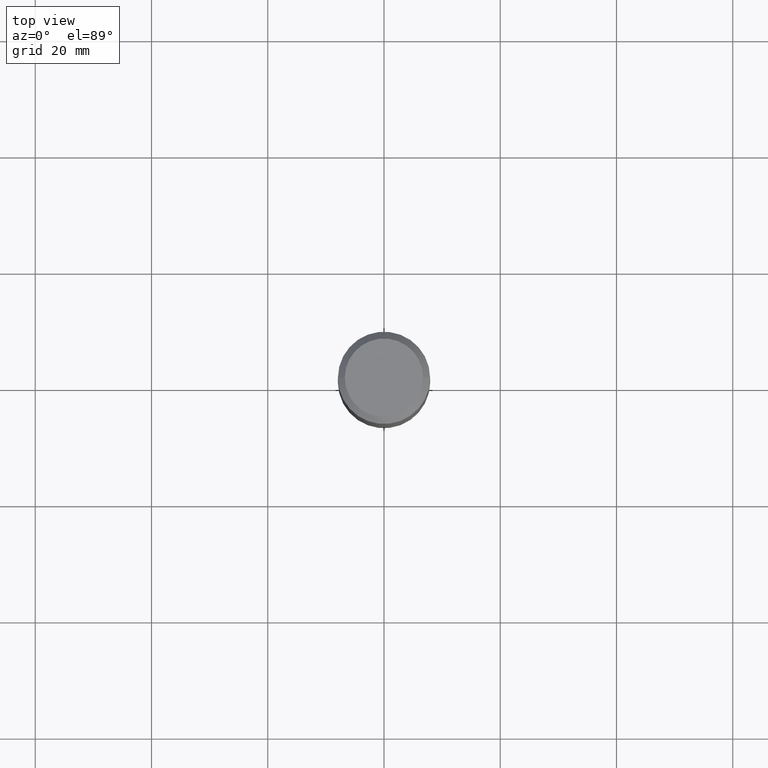
[diagram: clean part render]
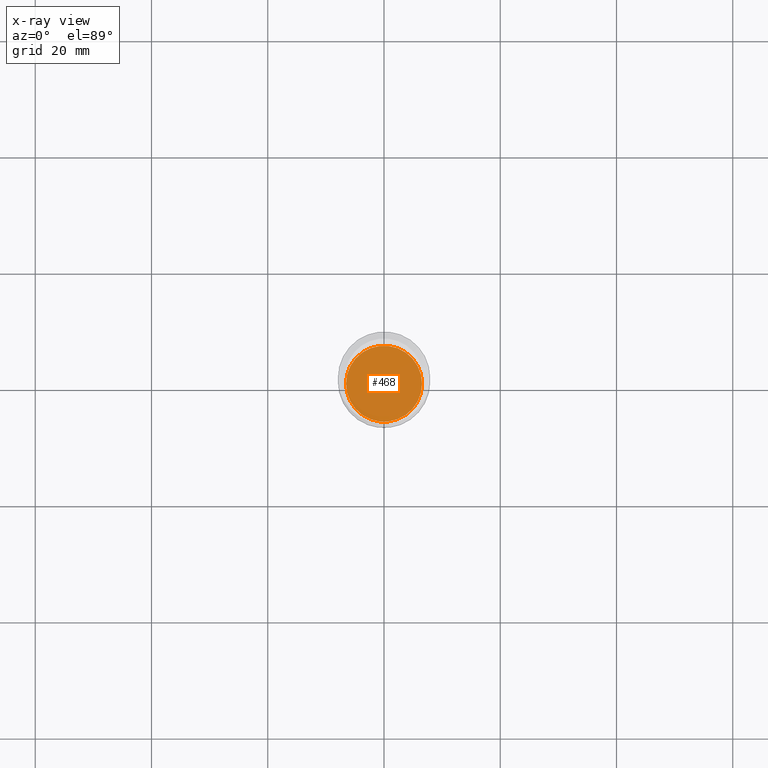
[diagram: x-ray — body ghosted, one internal face saturated and labeled with its STEP entity id]
A machine part, top view, then the same camera in x-ray: the body is ghosted and one INTERNAL B-rep face — a face not visible from any outside direction — is saturated and labeled: STEP entity #468.
In plain terms, the highlighted planar face has unit normal (-0, 0, 1).
Its self-contained STEP definition (entity closure, byte-faithful):
#22 = CARTESIAN_POINT ( 'NONE',  ( 5.769839101313211634E-29, -8.237801070866517629E-15, -2.359399999999999942 ) ) ;
#25 = EDGE_CURVE ( 'NONE', #242, #209, #348, .T. ) ;
#66 = DIRECTION ( 'NONE',  ( -2.445468806185136597E-29, 3.491481338843145583E-15, 1.000000000000000000 ) ) ;
#76 = AXIS2_PLACEMENT_3D ( 'NONE', #336, #222, #301 ) ;
#155 = AXIS2_PLACEMENT_3D ( 'NONE', #22, #66, #289 ) ;
#209 = VERTEX_POINT ( 'NONE', #244 ) ;
#213 = EDGE_LOOP ( 'NONE', ( #474, #391 ) ) ;
#222 = DIRECTION ( 'NONE',  ( -2.445468806185136597E-29, 3.491481338843145583E-15, 1.000000000000000000 ) ) ;
#228 = CARTESIAN_POINT ( 'NONE',  ( -0.2572999999999999732, -6.406925384581668051E-15, -2.359399999999999942 ) ) ;
#242 = VERTEX_POINT ( 'NONE', #228 ) ;
#244 = CARTESIAN_POINT ( 'NONE',  ( 0.2572999999999999732, -1.003451736783519379E-14, -2.359399999999999942 ) ) ;
#280 = CIRCLE ( 'NONE', #155, 0.2572999999999999732 ) ;
#289 = DIRECTION ( 'NONE',  ( 1.000000000000000000, -6.982962677686266711E-15, 0.000000000000000000 ) ) ;
#301 = DIRECTION ( 'NONE',  ( 1.000000000000000000, -6.982962677686266711E-15, 0.000000000000000000 ) ) ;
#336 = CARTESIAN_POINT ( 'NONE',  ( 5.769839101313211634E-29, -8.237801070866517629E-15, -2.359399999999999942 ) ) ;
#348 = CIRCLE ( 'NONE', #76, 0.2572999999999999732 ) ;
#359 = DIRECTION ( 'NONE',  ( 1.000000000000000000, -6.982962677686265922E-15, 4.876176775795935793E-29 ) ) ;
#374 = EDGE_CURVE ( 'NONE', #209, #242, #280, .T. ) ;
#383 = PLANE ( 'NONE',  #488 ) ;
#391 = ORIENTED_EDGE ( 'NONE', *, *, #25, .F. ) ;
#428 = DIRECTION ( 'NONE',  ( -2.438088387897960049E-29, 3.491481338843145188E-15, 1.000000000000000000 ) ) ;
#438 = FACE_OUTER_BOUND ( 'NONE', #213, .T. ) ;
#466 = CARTESIAN_POINT ( 'NONE',  ( 5.769839101313211634E-29, -8.237801070866517629E-15, -2.359399999999999942 ) ) ;
#468 = ADVANCED_FACE ( 'NONE', ( #438 ), #383, .F. ) ;
#474 = ORIENTED_EDGE ( 'NONE', *, *, #374, .F. ) ;
#488 = AXIS2_PLACEMENT_3D ( 'NONE', #466, #428, #359 ) ;